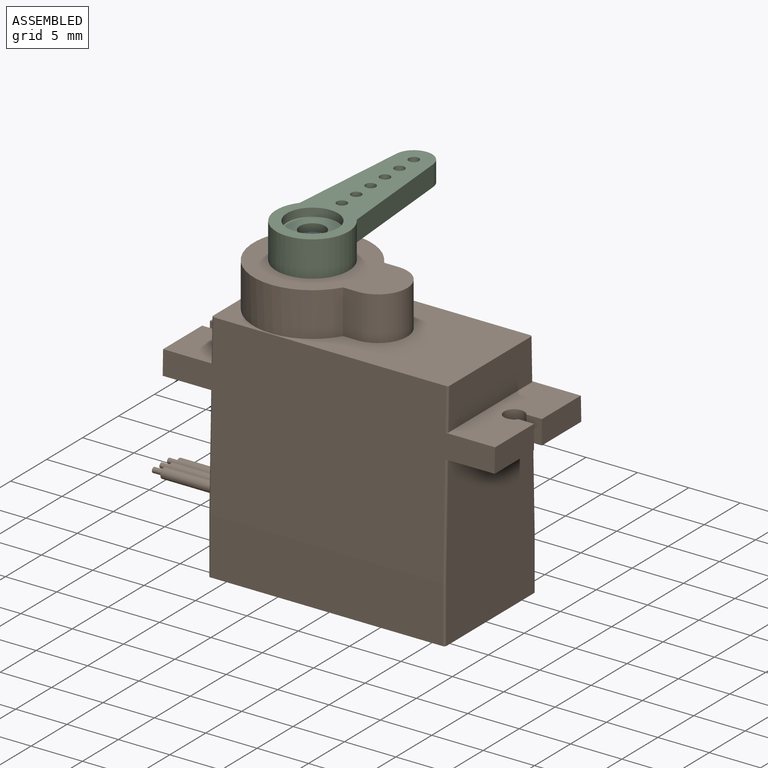
[diagram: assembled view]
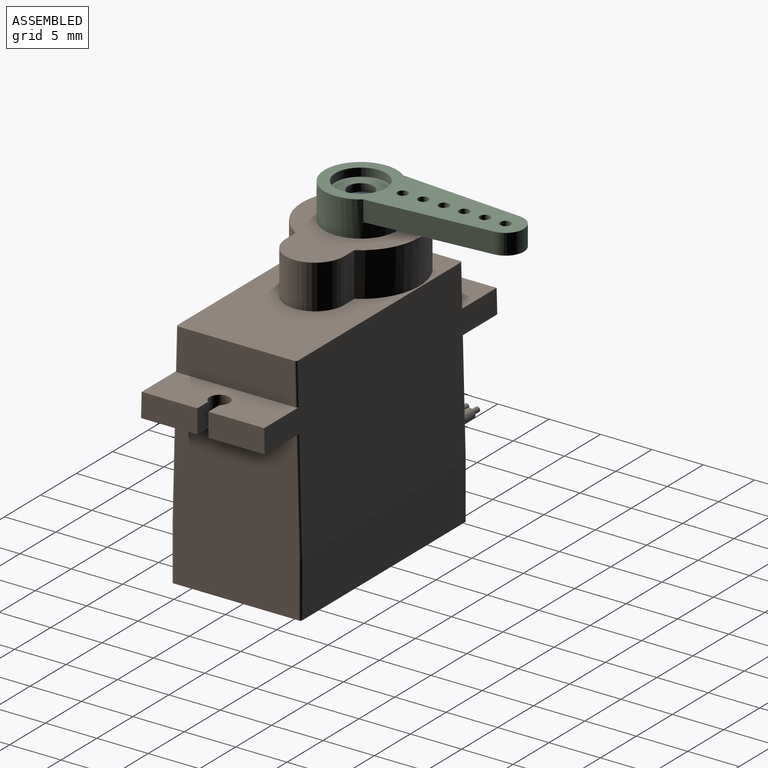
[diagram: assembled view, second angle]
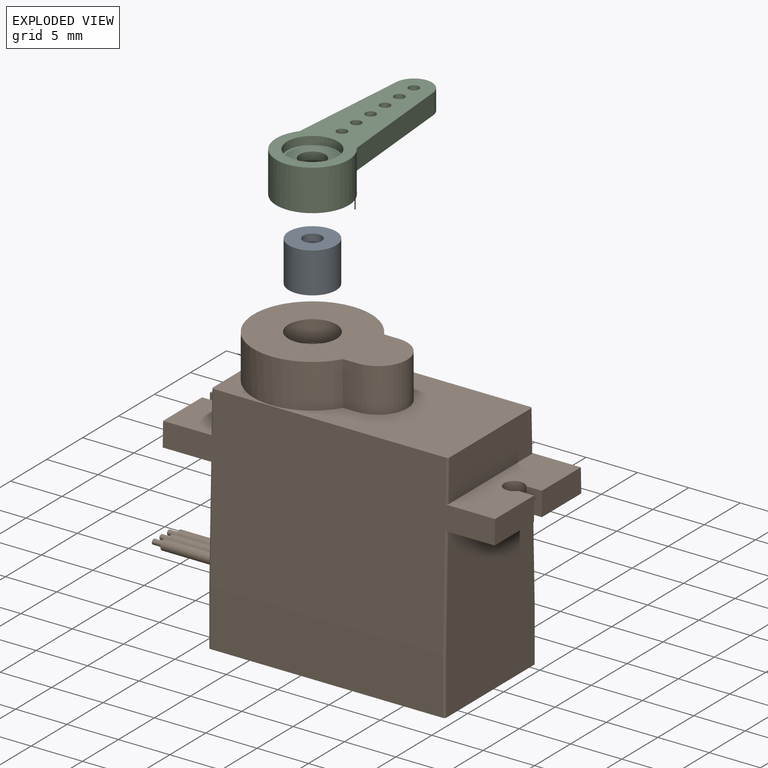
[diagram: exploded view]
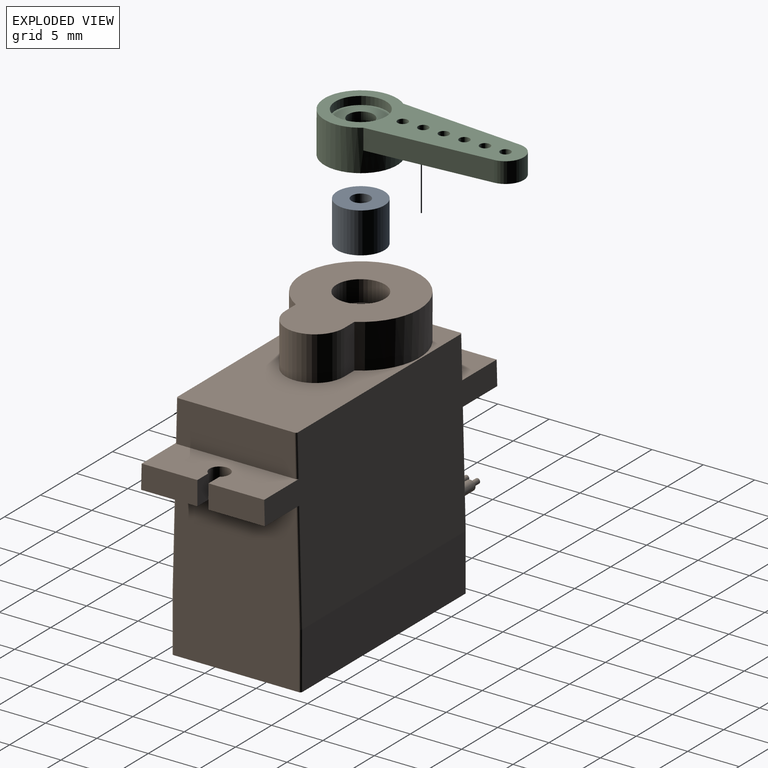
[diagram: exploded view, second angle]
ASSEMBLY  parts=3 mates=2
PART A: 4 faces, bbox 4.6x4.6x4 mm
  f0: cylinder r=2.3mm len=4.6mm, axis (0,0,1), area 57.1mm2, adj f1,f3
  f1: plane 4.6x4.6mm, normal (0,0,-1), area 14.1mm2, adj f0,f2
  f2: cylinder r=0.9mm len=3.95mm, axis (0,0,1), area 22.3mm2, adj f1,f3
  f3: plane 4.6x4.6mm, normal (0,0,1), area 14.1mm2, adj f0,f2
PART B: 75 faces, bbox 36.7x12.6x27 mm
  f0: plane 1x1mm, normal (-1,0,0), area 0.6mm2, adj f50,f55
  f1: plane 1x1mm, normal (-1,0,0), area 0.6mm2, adj f49,f53
  f2: plane 1x1mm, normal (-1,0,0), area 0.6mm2, adj f48,f51
  f3: plane 16.34x12.19mm, normal (-1,0,0), area 193.9mm2, adj f9,f17,f48,f49,f50,f61,f62,f63
  f4: plane 12.04x4.84mm, normal (0,0,-1), area 51.4mm2, adj f5,f13,f14,f24,f25,f29,f30,f31
  f5: plane 5.48x2.32mm, normal (1,0,0), area 12.6mm2, adj f4,f6,f25,f30
  f6: plane 11.93x4.84mm, normal (0,0,1), area 50.8mm2, adj f5,f14,f15,f24,f25,f29,f30,f31
  f7: plane 11.93x4.84mm, normal (0,0,1), area 50.8mm2, adj f8,f11,f12,f24,f25,f26,f27,f28
  f8: plane 5.48x2.32mm, normal (-1,0,0), area 12.6mm2, adj f7,f9,f24,f27
  f9: plane 12.04x4.84mm, normal (0,0,-1), area 51.4mm2, adj f3,f8,f12,f24,f25,f26,f27,f28
  f10: plane 23.03x11.72mm, normal (0,0,1), area 149mm2, adj f11,f15,f19,f20,f21,f22,f24,f25
  f11: plane 11.53x4.06mm, normal (-1,0,0), area 46.4mm2, adj f7,f10,f71,f72
  f12: plane 5.48x2.32mm, normal (-1,0,0), area 12.6mm2, adj f7,f9,f25,f28
  f13: plane 16.34x12.19mm, normal (1,0,0), area 196.2mm2, adj f4,f17,f65,f66,f67,f68
  f14: plane 5.48x2.32mm, normal (1,0,0), area 12.6mm2, adj f4,f6,f24,f31
  f15: plane 11.53x4.06mm, normal (1,0,0), area 46.4mm2, adj f6,f10,f69,f70
  f16: plane 22.63x5.5mm, normal (0,-1,0), area 124.5mm2, adj f17,f25,f61,f65
  f17: plane 23.03x12.59mm, normal (0,0,-1), area 277.3mm2, adj f3,f13,f16,f18,f32,f36,f40,f44
  f18: plane 22.63x5.5mm, normal (0,1,0), area 124.5mm2, adj f17,f24,f63,f67
  f19: cylinder r=5.72mm len=11.45mm, axis (0,0,-1), area 128.4mm2, adj f10,f20,f22,f23
  f20: plane 4.28x1.41mm, normal (0,-1,0), area 6mm2, adj f10,f19,f21,f23
  f21: cylinder r=2.85mm len=5.7mm, axis (0,0,-1), area 38.3mm2, adj f10,f20,f22,f23
  f22: plane 4.28x1.41mm, normal (0,1,0), area 6mm2, adj f10,f19,f21,f23
  f23: plane 14.95x11.45mm, normal (0,0,1), area 103.5mm2, adj f19,f20,f21,f22,f73
  f24: plane 32.31x17.22mm, normal (0,1,0.03), area 412.3mm2, adj f4,f6,f7,f8,f9,f10,f14,f18
  f25: plane 32.31x17.22mm, normal (0,-1,0.03), area 412.3mm2, adj f4,f5,f6,f7,f9,f10,f12,f16
  f26: cylinder r=0.97mm len=2.32mm, axis (0,0,-1), area 11.5mm2, adj f7,f9,f27,f28
  f27: plane 2.32x1.51mm, normal (0,-1,0), area 3.5mm2, adj f7,f8,f9,f26
  f28: plane 2.32x1.51mm, normal (0,1,0), area 3.5mm2, adj f7,f9,f12,f26
  f29: cylinder r=0.97mm len=2.32mm, axis (0,0,-1), area 11.5mm2, adj f4,f6,f30,f31
  f30: plane 2.32x1.51mm, normal (0,1,0), area 3.5mm2, adj f4,f5,f6,f29
  f31: plane 2.32x1.51mm, normal (0,-1,0), area 3.5mm2, adj f4,f6,f14,f29
  f32: cylinder r=1mm len=2mm, axis (0,0,-1), area 6.3mm2, adj f17,f33
  f33: plane 2x2mm, normal (0,0,-1), area 0.2mm2, adj f32,f34
  f34: cylinder r=0.97mm len=1.95mm, axis (0,0,-1), area 4.3mm2, adj f33,f60
  f35: plane 1.35x1.35mm, normal (0,0,-1), area 1.4mm2, adj f60
  f36: cylinder r=1mm len=2mm, axis (0,0,-1), area 6.3mm2, adj f17,f37
  f37: plane 2x2mm, normal (0,0,-1), area 0.2mm2, adj f36,f38
  f38: cylinder r=0.97mm len=1.95mm, axis (0,0,-1), area 4.3mm2, adj f37,f59
  f39: plane 1.35x1.35mm, normal (0,0,-1), area 1.4mm2, adj f59
  f40: cylinder r=1mm len=2mm, axis (0,0,-1), area 6.3mm2, adj f17,f41
  f41: plane 2x2mm, normal (0,0,-1), area 0.2mm2, adj f40,f42
  f42: cylinder r=0.97mm len=1.95mm, axis (0,0,-1), area 4.3mm2, adj f41,f57
  f43: plane 1.35x1.35mm, normal (0,0,-1), area 1.4mm2, adj f57
  f44: cylinder r=1mm len=2mm, axis (0,0,-1), area 6.3mm2, adj f17,f45
  f45: plane 2x2mm, normal (0,0,-1), area 0.2mm2, adj f44,f46
  f46: cylinder r=0.97mm len=1.95mm, axis (0,0,-1), area 4.3mm2, adj f45,f58
  f47: plane 1.35x1.35mm, normal (0,0,-1), area 1.4mm2, adj f58
  f48: cylinder r=0.5mm len=8mm, axis (1,0,0), area 25.1mm2, adj f2,f3
  f49: cylinder r=0.5mm len=8mm, axis (1,0,0), area 25.1mm2, adj f1,f3
  f50: cylinder r=0.5mm len=8mm, axis (1,0,0), area 25.1mm2, adj f0,f3
  f51: cylinder r=0.25mm len=1mm, axis (1,0,0), area 1.6mm2, adj f2,f52
  f52: plane 0.5x0.5mm, normal (-1,0,0), area 0.2mm2, adj f51
  f53: cylinder r=0.25mm len=1mm, axis (1,0,0), area 1.6mm2, adj f1,f54
  f54: plane 0.5x0.5mm, normal (-1,0,0), area 0.2mm2, adj f53
  f55: cylinder r=0.25mm len=1mm, axis (1,0,0), area 1.6mm2, adj f0,f56
  f56: plane 0.5x0.5mm, normal (-1,0,0), area 0.2mm2, adj f55
  f57: torus R=0.68mm, axis (0,0,1), area 2.6mm2, adj f42,f43
  f58: torus R=0.68mm, axis (0,0,1), area 2.6mm2, adj f46,f47
  f59: torus R=0.68mm, axis (0,0,1), area 2.6mm2, adj f38,f39
  f60: torus R=0.68mm, axis (0,0,1), area 2.6mm2, adj f34,f35
  f61: cylinder r=0.2mm len=5.5mm, axis (0,0,1), area 1.7mm2, adj f3,f16,f17,f62
  f62: cylinder r=0.2mm len=10.85mm, axis (0,0.03,1), area 3.4mm2, adj f3,f9,f25,f61
  f63: cylinder r=0.2mm len=5.5mm, axis (0,0,-1), area 1.7mm2, adj f3,f17,f18,f64
  f64: cylinder r=0.2mm len=10.85mm, axis (0,0.03,-1), area 3.4mm2, adj f3,f9,f24,f63
  f65: cylinder r=0.2mm len=5.5mm, axis (0,0,-1), area 1.7mm2, adj f13,f16,f17,f66
  f66: cylinder r=0.2mm len=10.85mm, axis (0,-0.03,-1), area 3.4mm2, adj f4,f13,f25,f65
  f67: cylinder r=0.2mm len=5.5mm, axis (0,0,1), area 1.7mm2, adj f13,f17,f18,f68
  f68: cylinder r=0.2mm len=10.85mm, axis (0,-0.03,1), area 3.4mm2, adj f4,f13,f24,f67
  f69: cylinder r=0.2mm len=4.07mm, axis (0,-0.03,1), area 1.3mm2, adj f6,f10,f15,f24
  f70: cylinder r=0.2mm len=4.07mm, axis (0,-0.03,-1), area 1.3mm2, adj f6,f10,f15,f25
  f71: cylinder r=0.2mm len=4.07mm, axis (0,0.03,-1), area 1.3mm2, adj f7,f10,f11,f24
  f72: cylinder r=0.2mm len=4.07mm, axis (0,0.03,1), area 1.3mm2, adj f7,f10,f11,f25
  f73: cylinder r=2.35mm len=4.7mm, axis (0,0,1), area 30.3mm2, adj f23,f74
  f74: plane 4.7x4.7mm, normal (0,0,1), area 17.3mm2, adj f73
PART C: 18 faces, bbox 19.4x7.1x4 mm
  f0: cylinder r=3.54mm len=7.07mm, axis (0,0,1), area 76.1mm2, adj f1,f7,f9,f16,f17
  f1: plane 19.4x7.07mm, normal (0,0,1), area 69.3mm2, adj f0,f2,f8,f9,f10,f11,f12,f13
  f2: cylinder r=2.48mm len=4.95mm, axis (0,0,1), area 12.4mm2, adj f1,f3
  f3: plane 4.95x4.95mm, normal (0,0,1), area 14.4mm2, adj f2,f4
  f4: cylinder r=1.25mm len=2.49mm, axis (0,0,1), area 5.9mm2, adj f3,f5
  f5: plane 4.75x4.75mm, normal (0,0,-1), area 12.9mm2, adj f4,f6
  f6: cylinder r=2.38mm len=4.75mm, axis (0,0,1), area 36.6mm2, adj f5,f7
  f7: plane 7.07x7.07mm, normal (0,0,-1), area 21.5mm2, adj f0,f6
  f8: cylinder r=0.5mm len=2mm, axis (0,0,-1), area 6.3mm2, adj f1,f16
  f9: plane 12.04x2mm, normal (0.08,-1,0), area 24.2mm2, adj f0,f1,f10,f16
  f10: cylinder r=1.78mm len=3.55mm, axis (0,0,-1), area 10.6mm2, adj f1,f9,f16,f17
  f11: cylinder r=0.5mm len=2mm, axis (0,0,-1), area 6.3mm2, adj f1,f16
  f12: cylinder r=0.5mm len=2mm, axis (0,0,-1), area 6.3mm2, adj f1,f16
  f13: cylinder r=0.5mm len=2mm, axis (0,0,-1), area 6.3mm2, adj f1,f16
  f14: cylinder r=0.5mm len=2mm, axis (0,0,-1), area 6.3mm2, adj f1,f16
  f15: cylinder r=0.5mm len=2mm, axis (0,0,-1), area 6.3mm2, adj f1,f16
  f16: plane 13.68x5.55mm, normal (0,0,-1), area 49.3mm2, adj f0,f8,f9,f10,f11,f12,f13,f14
  f17: plane 12.04x2mm, normal (0.08,1,0), area 24.2mm2, adj f0,f1,f10,f16
PLACE A t=(-30.87,-1.91,-3.29)mm
PLACE B t=(-30.87,-1.91,-2.24)mm
PLACE C rot(axis=(0,0,1),90deg) t=(-32.28,-1.91,9.87)mm
MATE revolute B.f19 <-> A.f0  axis (0,0,1) through (-32.28,-1.91,6.37)mm
MATE fastened C.f0 <-> A.f0  axis (0,0,-1) through (-32.28,-1.91,10.32)mm
